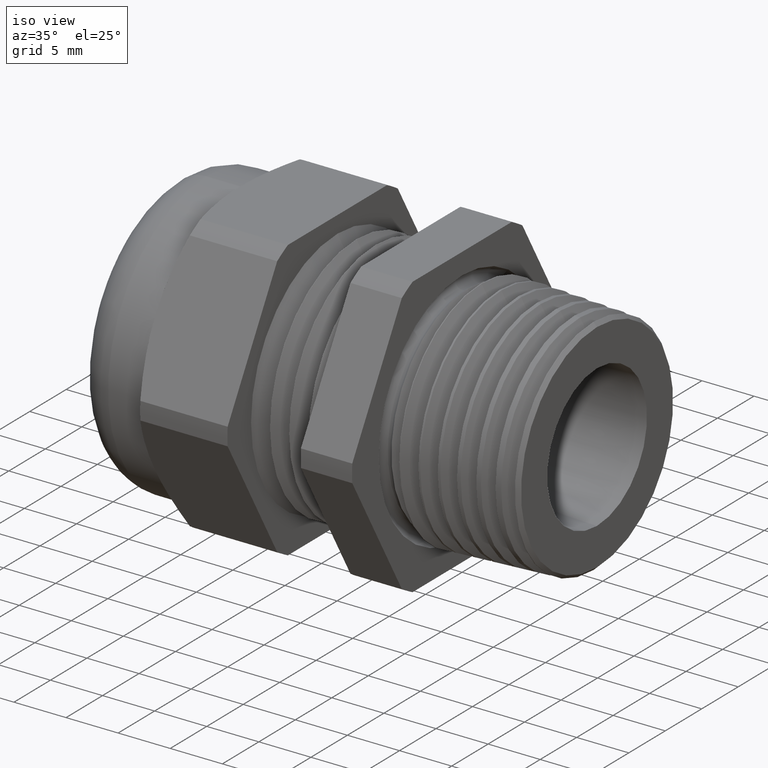
[diagram: clean part render]
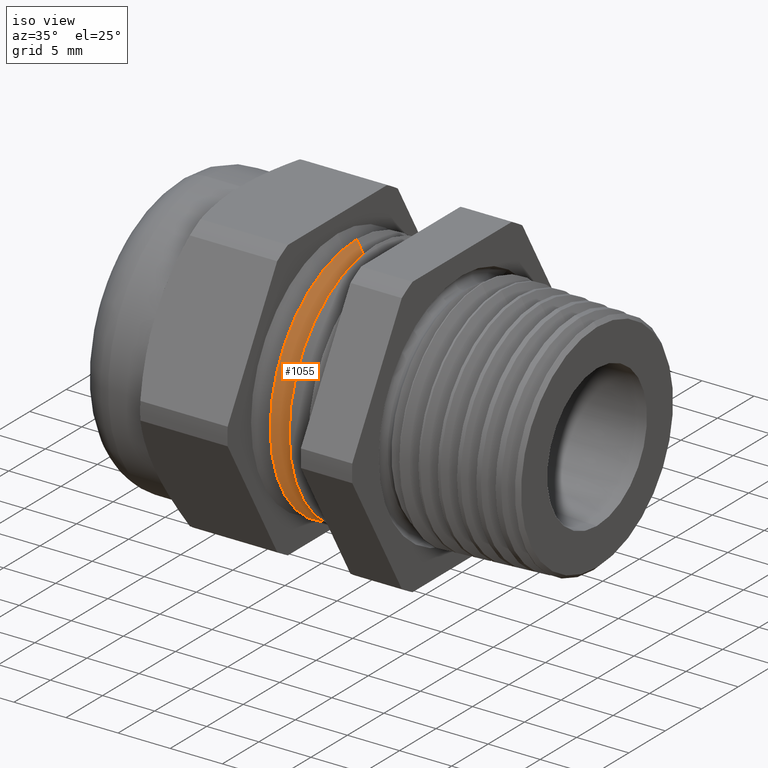
[diagram: same view with one face highlighted and labeled with its STEP entity id]
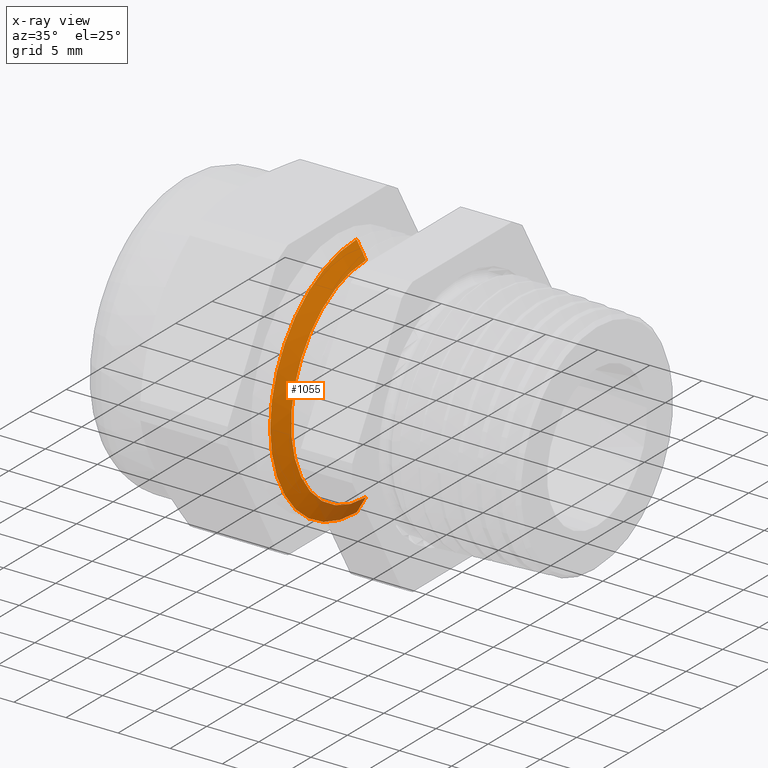
[diagram: x-ray of the same camera — body ghosted, the highlighted face saturated]
A machine part, iso view. The second image highlights one B-rep face of the part: STEP entity #1055.
The next image is the same camera in x-ray: the body ghosted, the highlighted face saturated — about 9% of this face is hidden behind the body in this view.
In plain terms, the highlighted conical surface has half-angle 60 deg.
Its self-contained STEP definition (entity closure, byte-faithful):
#99 = EDGE_CURVE ( 'NONE', #445, #255, #1352, .T. ) ;
#193 = VERTEX_POINT ( 'NONE', #1541 ) ;
#255 = VERTEX_POINT ( 'NONE', #1674 ) ;
#445 = VERTEX_POINT ( 'NONE', #2017 ) ;
#447 = EDGE_CURVE ( 'NONE', #193, #448, #2016, .T. ) ;
#448 = VERTEX_POINT ( 'NONE', #2012 ) ;
#945 = EDGE_CURVE ( 'NONE', #255, #448, #2994, .T. ) ;
#1052 = EDGE_CURVE ( 'NONE', #445, #193, #3114, .T. ) ;
#1055 = ADVANCED_FACE ( 'NONE', ( #3110 ), #3109, .T. ) ;
#1056 = EDGE_LOOP ( 'NONE', ( #1057, #1058, #1059, #1060 ) ) ;
#1057 = ORIENTED_EDGE ( 'NONE', *, *, #447, .F. ) ;
#1058 = ORIENTED_EDGE ( 'NONE', *, *, #1052, .F. ) ;
#1059 = ORIENTED_EDGE ( 'NONE', *, *, #99, .T. ) ;
#1060 = ORIENTED_EDGE ( 'NONE', *, *, #945, .T. ) ;
#1349 = DIRECTION ( 'NONE',  ( -0.4999999999999941200, 0.0000000000000000000, 0.8660254037844420400 ) ) ;
#1350 = VECTOR ( 'NONE', #1349, 39.37007874015748100 ) ;
#1351 = CARTESIAN_POINT ( 'NONE',  ( -0.3984047619047619300, 0.0000000000000000000, 0.4664000000000000400 ) ) ;
#1352 = LINE ( 'NONE', #1351, #1350 ) ;
#1541 = CARTESIAN_POINT ( 'NONE',  ( -0.3626904928422663400, 0.0000000000000000000, -0.4045410714285714900 ) ) ;
#1674 = CARTESIAN_POINT ( 'NONE',  ( -0.3984047619047619300, 0.0000000000000000000, 0.4664000000000000400 ) ) ;
#2012 = CARTESIAN_POINT ( 'NONE',  ( -0.3984047619047619300, 5.711752671223256000E-017, -0.4664000000000000400 ) ) ;
#2013 = DIRECTION ( 'NONE',  ( -0.4999999999999941200, 1.060575238724911100E-016, -0.8660254037844420400 ) ) ;
#2014 = VECTOR ( 'NONE', #2013, 39.37007874015748100 ) ;
#2015 = CARTESIAN_POINT ( 'NONE',  ( -0.3984047619047619300, 5.711752671223256000E-017, -0.4664000000000000400 ) ) ;
#2016 = LINE ( 'NONE', #2015, #2014 ) ;
#2017 = CARTESIAN_POINT ( 'NONE',  ( -0.3626904928422663400, 5.332975976854832300E-017, 0.4045410714285714900 ) ) ;
#2991 = DIRECTION ( 'NONE',  ( 0.0000000000000000000, 0.0000000000000000000, -1.000000000000000000 ) ) ;
#2992 = DIRECTION ( 'NONE',  ( 1.000000000000000000, 0.0000000000000000000, 0.0000000000000000000 ) ) ;
#2993 = AXIS2_PLACEMENT_3D ( 'NONE', #2999, #2992, #2991 ) ;
#2994 = CIRCLE ( 'NONE', #2993, 0.4664000000000000400 ) ;
#2999 = CARTESIAN_POINT ( 'NONE',  ( -0.3984047619047619300, 0.0000000000000000000, 0.0000000000000000000 ) ) ;
#3104 = DIRECTION ( 'NONE',  ( 0.0000000000000000000, 0.0000000000000000000, 1.000000000000000000 ) ) ;
#3105 = DIRECTION ( 'NONE',  ( -1.000000000000000000, 0.0000000000000000000, 0.0000000000000000000 ) ) ;
#3106 = CARTESIAN_POINT ( 'NONE',  ( -0.3984047619047619300, 0.0000000000000000000, 0.0000000000000000000 ) ) ;
#3107 = AXIS2_PLACEMENT_3D ( 'NONE', #3106, #3105, #3104 ) ;
#3109 = CONICAL_SURFACE ( 'NONE', #3107, 0.4664000000000000400, 1.047197551196604500 ) ;
#3110 = FACE_OUTER_BOUND ( 'NONE', #1056, .T. ) ;
#3111 = DIRECTION ( 'NONE',  ( 0.0000000000000000000, 0.0000000000000000000, -1.000000000000000000 ) ) ;
#3112 = DIRECTION ( 'NONE',  ( 1.000000000000000000, 0.0000000000000000000, 0.0000000000000000000 ) ) ;
#3113 = AXIS2_PLACEMENT_3D ( 'NONE', #3119, #3112, #3111 ) ;
#3114 = CIRCLE ( 'NONE', #3113, 0.4045410714285714900 ) ;
#3119 = CARTESIAN_POINT ( 'NONE',  ( -0.3626904928422663400, 0.0000000000000000000, 0.0000000000000000000 ) ) ;